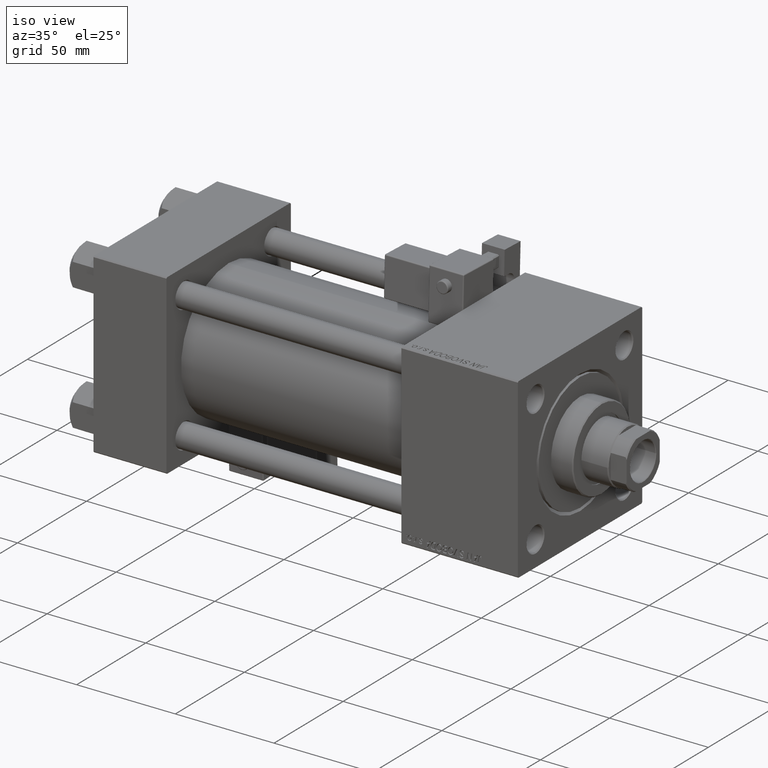
[diagram: clean part render]
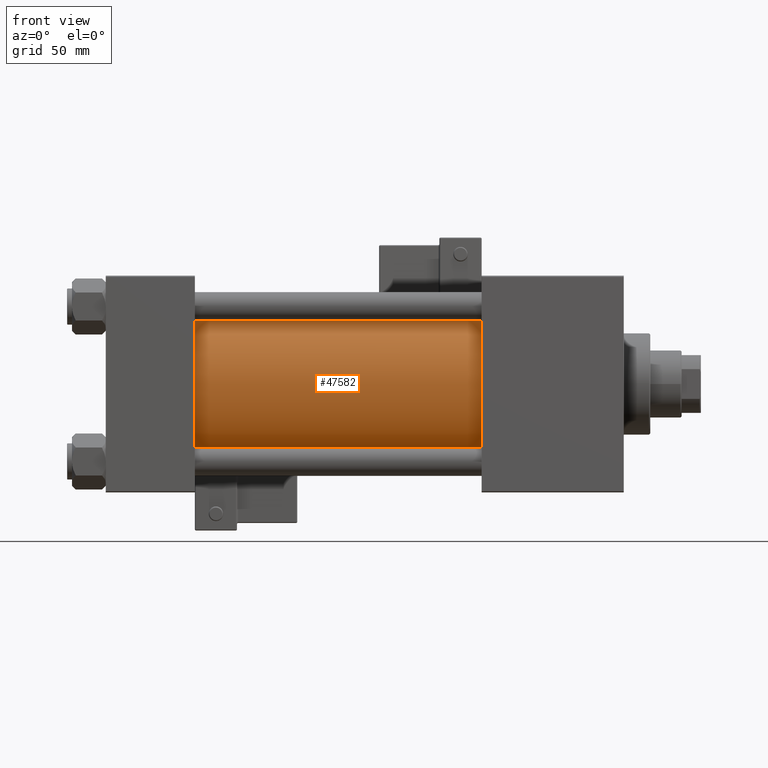
[diagram: tour spotlight — one face highlighted and labeled with its STEP entity id]
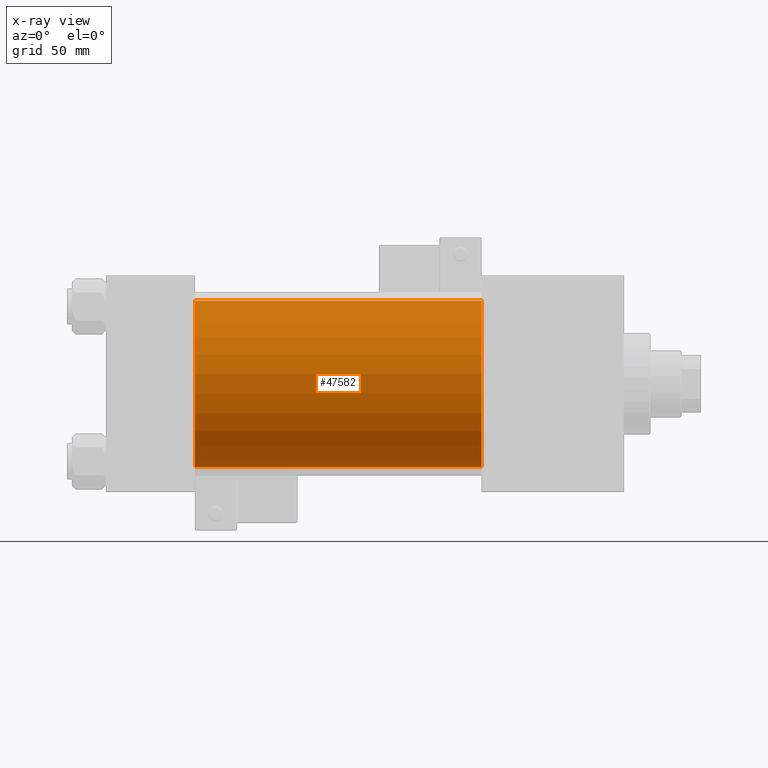
[diagram: x-ray of the same camera — body ghosted, this tour face saturated]
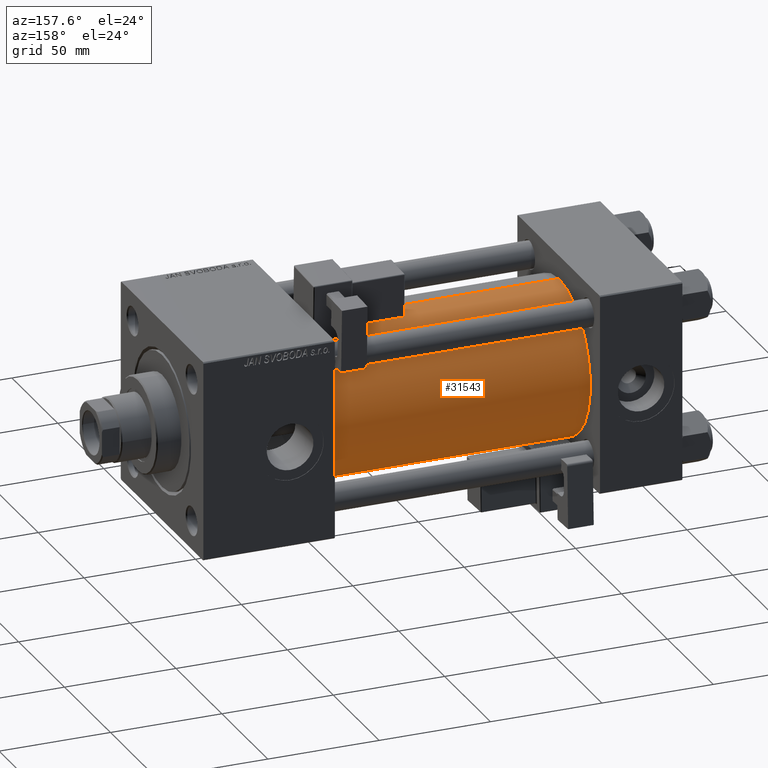
[diagram: tour spotlight — one face highlighted and labeled with its STEP entity id]
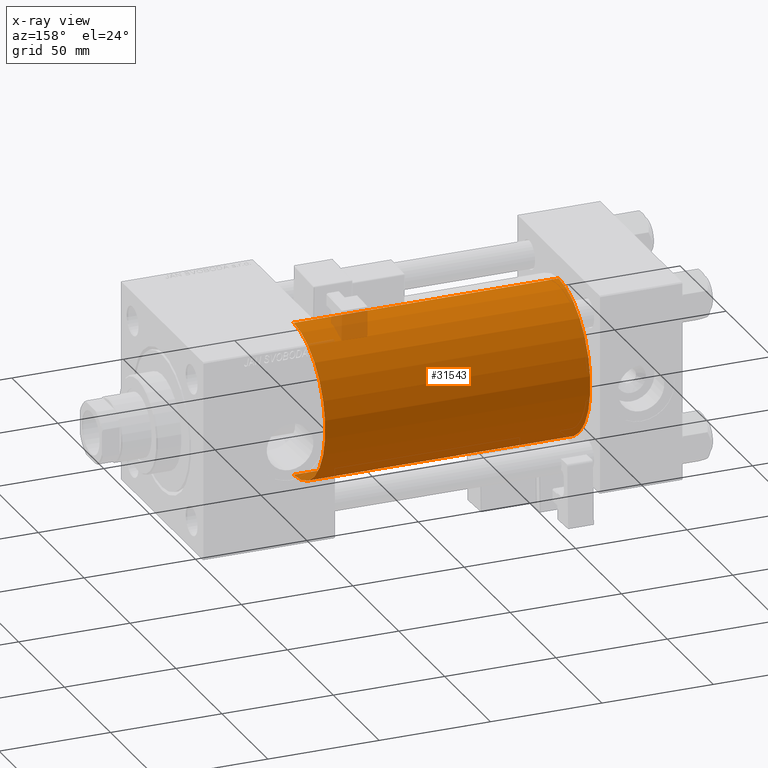
[diagram: x-ray of the same camera — body ghosted, this tour face saturated]
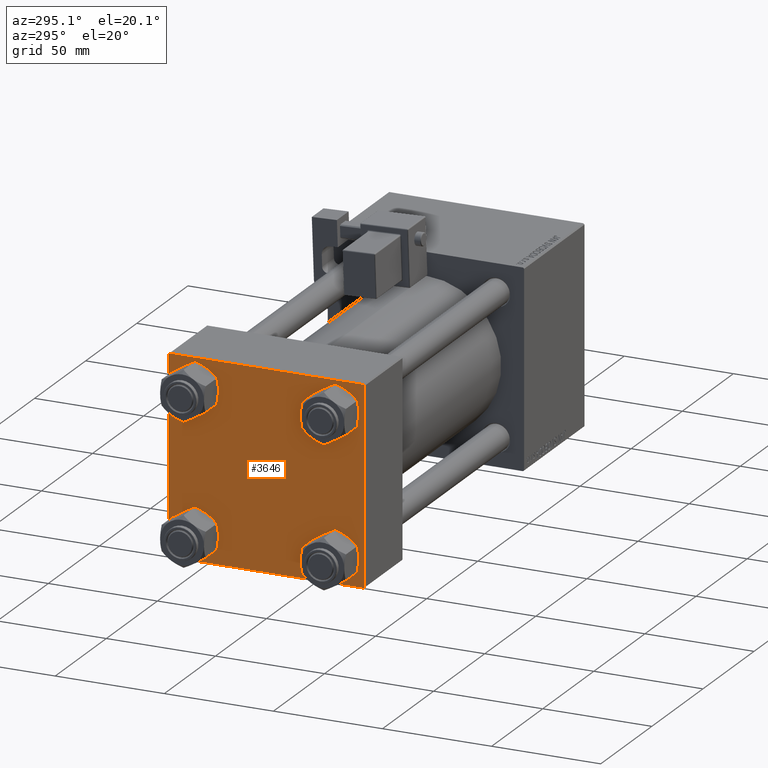
[diagram: tour spotlight — one face highlighted and labeled with its STEP entity id]
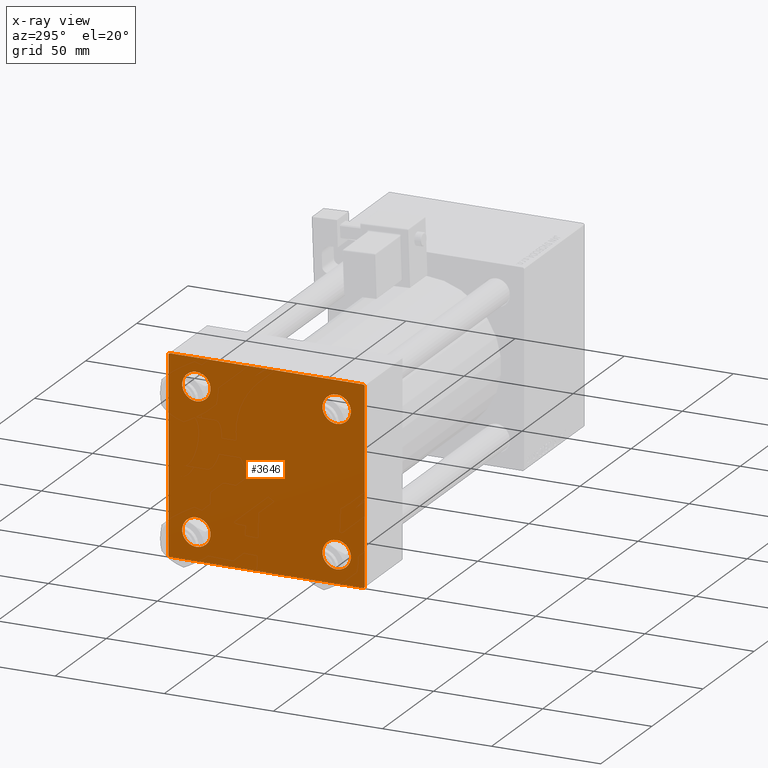
[diagram: x-ray of the same camera — body ghosted, this tour face saturated]
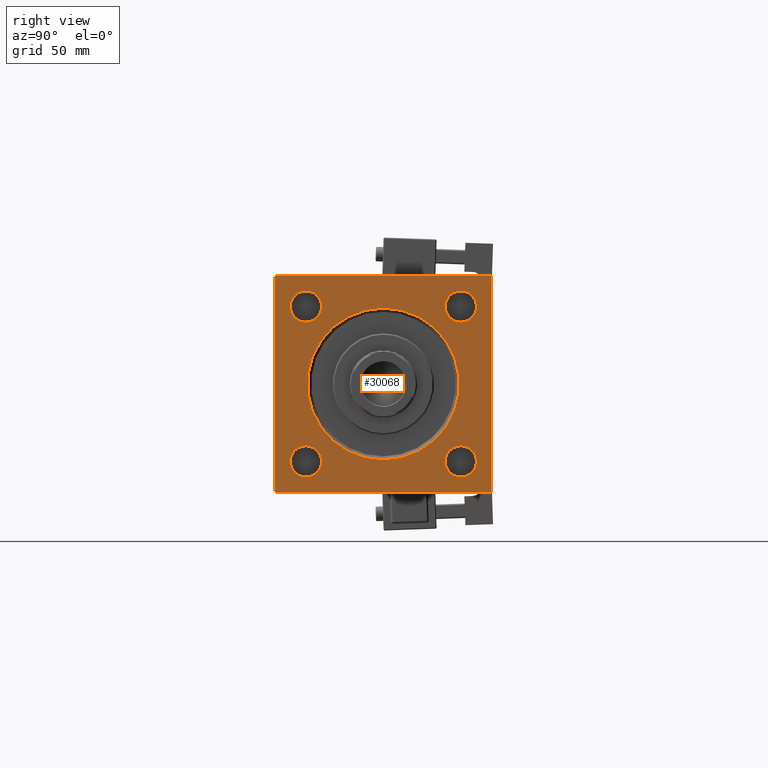
[diagram: tour spotlight — one face highlighted and labeled with its STEP entity id]
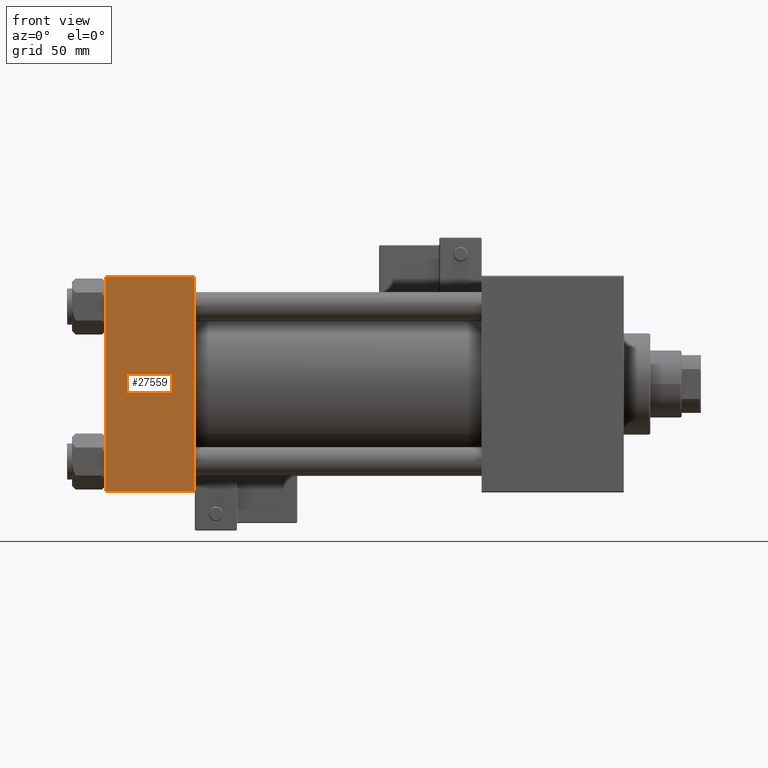
[diagram: tour spotlight — one face highlighted and labeled with its STEP entity id]
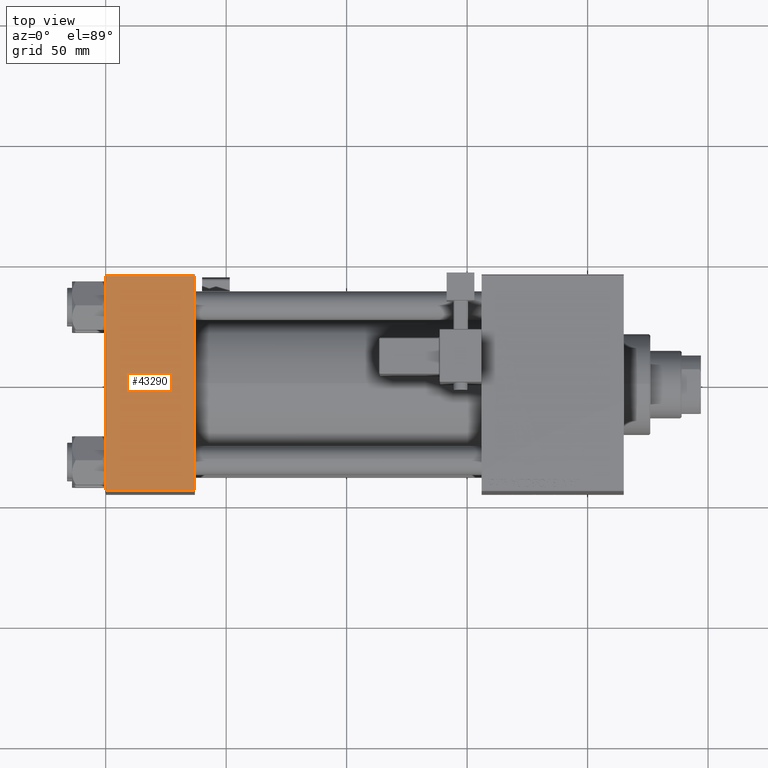
[diagram: tour spotlight — one face highlighted and labeled with its STEP entity id]
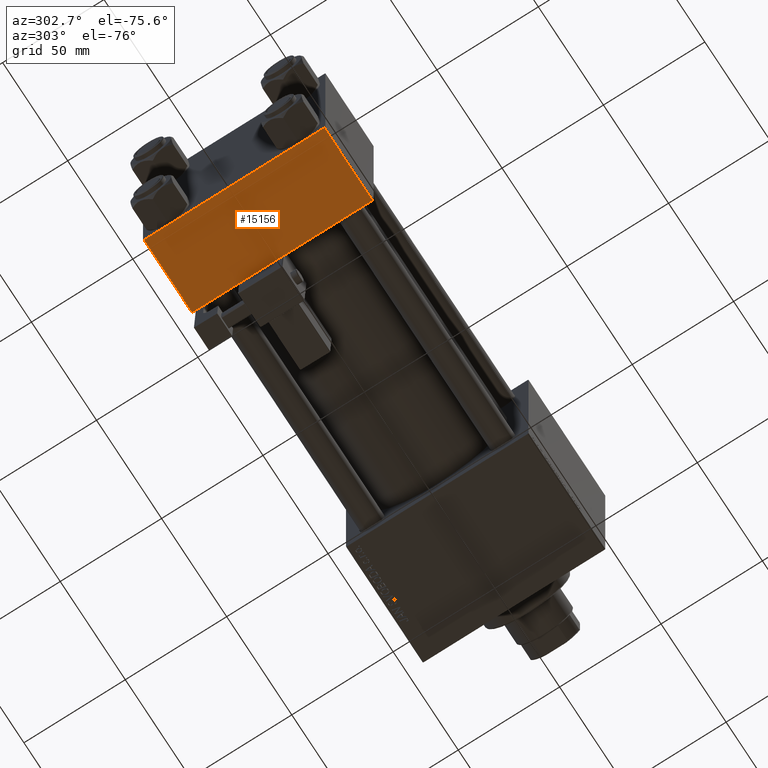
[diagram: tour spotlight — one face highlighted and labeled with its STEP entity id]
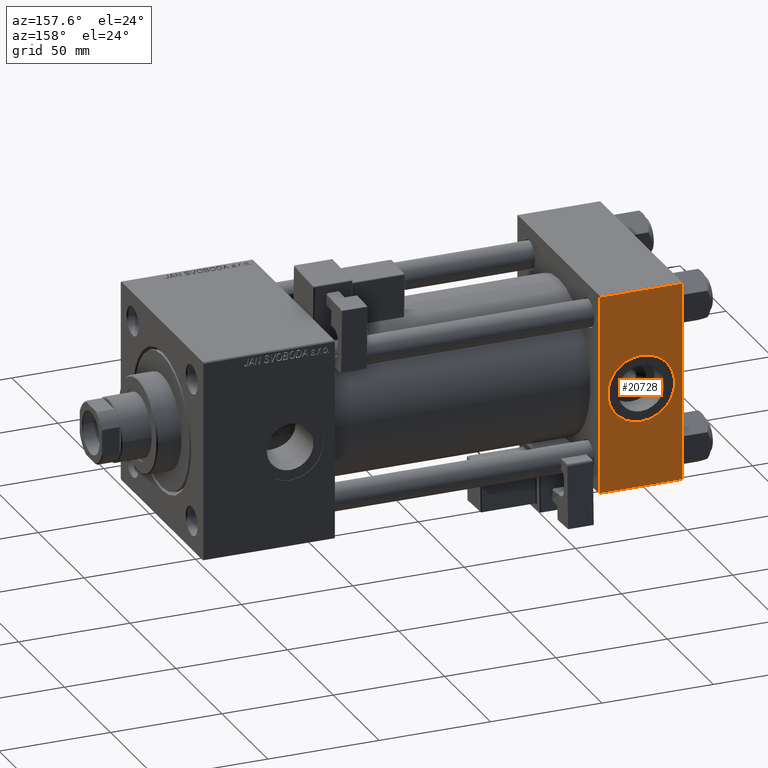
[diagram: tour spotlight — one face highlighted and labeled with its STEP entity id]
A machine part: a face-by-face anatomy tour. The part has 1303 B-rep faces; the first image is the clean iso view, then the 8 largest visible faces are spotlighted one at a time (largest first), each with its STEP entity span.

Face 1 — front view, entity #47582. An x-ray twin of the same camera follows (body ghosted, this face saturated) — the face is partly hidden behind the body. In plain terms, the highlighted cylindrical surface (partial cylindrical patch) has radius 34.5 mm, axis along (-1, -0, -0).
Definition (entity closure, byte-faithful):
#1209 = LINE ( 'NONE', #9971, #43547 ) ;
#1996 = AXIS2_PLACEMENT_3D ( 'NONE', #41012, #9218, #32814 ) ;
#2386 = DIRECTION ( 'NONE',  ( 0.000000000000000000, 0.000000000000000000, -1.000000000000000000 ) ) ;
#3608 = EDGE_LOOP ( 'NONE', ( #45586, #34998, #34489, #42099 ) ) ;
#4909 = AXIS2_PLACEMENT_3D ( 'NONE', #11379, #7385, #2386 ) ;
#6371 = EDGE_CURVE ( 'NONE', #19076, #20056, #1209, .T. ) ;
#7385 = DIRECTION ( 'NONE',  ( 1.000000000000000000, 0.000000000000000000, 0.000000000000000000 ) ) ;
#7760 = EDGE_CURVE ( 'NONE', #42928, #19899, #37087, .T. ) ;
#9218 = DIRECTION ( 'NONE',  ( 1.000000000000000000, -0.000000000000000000, 0.000000000000000000 ) ) ;
#9971 = CARTESIAN_POINT ( 'NONE',  ( 156.0000000000000000, -2.602085213965210642E-15, 34.50000000000000000 ) ) ;
#10837 = AXIS2_PLACEMENT_3D ( 'NONE', #22839, #47479, #11428 ) ;
#11379 = CARTESIAN_POINT ( 'NONE',  ( 156.0000000000000000, -2.602085213965210642E-15, 0.000000000000000000 ) ) ;
#11428 = DIRECTION ( 'NONE',  ( 0.000000000000000000, 0.000000000000000000, 1.000000000000000000 ) ) ;
#16699 = CARTESIAN_POINT ( 'NONE',  ( 156.0000000000000000, 1.622946243093158675E-15, -34.50000000000000000 ) ) ;
#17608 = CIRCLE ( 'NONE', #4909, 34.50000000000000000 ) ;
#18066 = CIRCLE ( 'NONE', #1996, 34.50000000000000000 ) ;
#19076 = VERTEX_POINT ( 'NONE', #47985 ) ;
#19635 = CYLINDRICAL_SURFACE ( 'NONE', #10837, 34.50000000000000000 ) ;
#19899 = VERTEX_POINT ( 'NONE', #37159 ) ;
#20056 = VERTEX_POINT ( 'NONE', #35002 ) ;
#21967 = EDGE_CURVE ( 'NONE', #20056, #19899, #18066, .T. ) ;
#22839 = CARTESIAN_POINT ( 'NONE',  ( 156.0000000000000000, -2.602085213965210642E-15, 0.000000000000000000 ) ) ;
#28899 = DIRECTION ( 'NONE',  ( -1.000000000000000000, -0.000000000000000000, -0.000000000000000000 ) ) ;
#32814 = DIRECTION ( 'NONE',  ( 0.000000000000000000, 0.000000000000000000, 1.000000000000000000 ) ) ;
#34489 = ORIENTED_EDGE ( 'NONE', *, *, #6371, .T. ) ;
#34998 = ORIENTED_EDGE ( 'NONE', *, *, #35562, .F. ) ;
#35002 = CARTESIAN_POINT ( 'NONE',  ( 37.00000000000000711, -2.602085213965210642E-15, 34.50000000000000000 ) ) ;
#35562 = EDGE_CURVE ( 'NONE', #19076, #42928, #17608, .T. ) ;
#37087 = LINE ( 'NONE', #16699, #40091 ) ;
#37159 = CARTESIAN_POINT ( 'NONE',  ( 37.00000000000000711, 1.622946243093158675E-15, -34.50000000000000000 ) ) ;
#38300 = DIRECTION ( 'NONE',  ( -1.000000000000000000, -0.000000000000000000, -0.000000000000000000 ) ) ;
#40091 = VECTOR ( 'NONE', #28899, 1000.000000000000000 ) ;
#41012 = CARTESIAN_POINT ( 'NONE',  ( 37.00000000000000711, -2.602085213965210642E-15, 0.000000000000000000 ) ) ;
#42099 = ORIENTED_EDGE ( 'NONE', *, *, #21967, .T. ) ;
#42723 = CARTESIAN_POINT ( 'NONE',  ( 156.0000000000000000, 1.622946243093158675E-15, -34.50000000000000000 ) ) ;
#42928 = VERTEX_POINT ( 'NONE', #42723 ) ;
#43547 = VECTOR ( 'NONE', #38300, 1000.000000000000000 ) ;
#45586 = ORIENTED_EDGE ( 'NONE', *, *, #7760, .F. ) ;
#47479 = DIRECTION ( 'NONE',  ( -1.000000000000000000, -0.000000000000000000, -0.000000000000000000 ) ) ;
#47582 = ADVANCED_FACE ( 'NONE', ( #47741 ), #19635, .T. ) ;
#47741 = FACE_OUTER_BOUND ( 'NONE', #3608, .T. ) ;
#47985 = CARTESIAN_POINT ( 'NONE',  ( 156.0000000000000000, -2.602085213965210642E-15, 34.50000000000000000 ) ) ;

Face 2 — auxiliary view, entity #31543. An x-ray twin of the same camera follows (body ghosted, this face saturated) — the face is partly hidden behind the body. In plain terms, the highlighted cylindrical surface (partial cylindrical patch) has radius 34.5 mm, axis along (-1, -0, -0).
Definition (entity closure, byte-faithful):
#1209 = LINE ( 'NONE', #9971, #43547 ) ;
#2151 = CIRCLE ( 'NONE', #5517, 34.50000000000000000 ) ;
#4212 = EDGE_LOOP ( 'NONE', ( #22278, #8773, #36427, #51671 ) ) ;
#5382 = FACE_OUTER_BOUND ( 'NONE', #4212, .T. ) ;
#5517 = AXIS2_PLACEMENT_3D ( 'NONE', #38617, #17990, #22216 ) ;
#6371 = EDGE_CURVE ( 'NONE', #19076, #20056, #1209, .T. ) ;
#7760 = EDGE_CURVE ( 'NONE', #42928, #19899, #37087, .T. ) ;
#8773 = ORIENTED_EDGE ( 'NONE', *, *, #7760, .T. ) ;
#9633 = CARTESIAN_POINT ( 'NONE',  ( 156.0000000000000000, -2.602085213965210642E-15, 0.000000000000000000 ) ) ;
#9971 = CARTESIAN_POINT ( 'NONE',  ( 156.0000000000000000, -2.602085213965210642E-15, 34.50000000000000000 ) ) ;
#15032 = DIRECTION ( 'NONE',  ( 0.000000000000000000, 0.000000000000000000, 1.000000000000000000 ) ) ;
#16699 = CARTESIAN_POINT ( 'NONE',  ( 156.0000000000000000, 1.622946243093158675E-15, -34.50000000000000000 ) ) ;
#16822 = AXIS2_PLACEMENT_3D ( 'NONE', #26971, #46837, #15032 ) ;
#17990 = DIRECTION ( 'NONE',  ( 1.000000000000000000, 0.000000000000000000, 0.000000000000000000 ) ) ;
#19076 = VERTEX_POINT ( 'NONE', #47985 ) ;
#19899 = VERTEX_POINT ( 'NONE', #37159 ) ;
#20056 = VERTEX_POINT ( 'NONE', #35002 ) ;
#20577 = CYLINDRICAL_SURFACE ( 'NONE', #42822, 34.50000000000000000 ) ;
#22216 = DIRECTION ( 'NONE',  ( 0.000000000000000000, 0.000000000000000000, -1.000000000000000000 ) ) ;
#22278 = ORIENTED_EDGE ( 'NONE', *, *, #26284, .F. ) ;
#23577 = CIRCLE ( 'NONE', #16822, 34.50000000000000000 ) ;
#25803 = DIRECTION ( 'NONE',  ( 0.000000000000000000, 0.000000000000000000, 1.000000000000000000 ) ) ;
#26284 = EDGE_CURVE ( 'NONE', #42928, #19076, #2151, .T. ) ;
#26971 = CARTESIAN_POINT ( 'NONE',  ( 37.00000000000000711, -2.602085213965210642E-15, 0.000000000000000000 ) ) ;
#28899 = DIRECTION ( 'NONE',  ( -1.000000000000000000, -0.000000000000000000, -0.000000000000000000 ) ) ;
#31543 = ADVANCED_FACE ( 'NONE', ( #5382 ), #20577, .T. ) ;
#33493 = DIRECTION ( 'NONE',  ( -1.000000000000000000, -0.000000000000000000, -0.000000000000000000 ) ) ;
#35002 = CARTESIAN_POINT ( 'NONE',  ( 37.00000000000000711, -2.602085213965210642E-15, 34.50000000000000000 ) ) ;
#36427 = ORIENTED_EDGE ( 'NONE', *, *, #48915, .T. ) ;
#37087 = LINE ( 'NONE', #16699, #40091 ) ;
#37159 = CARTESIAN_POINT ( 'NONE',  ( 37.00000000000000711, 1.622946243093158675E-15, -34.50000000000000000 ) ) ;
#38300 = DIRECTION ( 'NONE',  ( -1.000000000000000000, -0.000000000000000000, -0.000000000000000000 ) ) ;
#38617 = CARTESIAN_POINT ( 'NONE',  ( 156.0000000000000000, -2.602085213965210642E-15, 0.000000000000000000 ) ) ;
#40091 = VECTOR ( 'NONE', #28899, 1000.000000000000000 ) ;
#42723 = CARTESIAN_POINT ( 'NONE',  ( 156.0000000000000000, 1.622946243093158675E-15, -34.50000000000000000 ) ) ;
#42822 = AXIS2_PLACEMENT_3D ( 'NONE', #9633, #33493, #25803 ) ;
#42928 = VERTEX_POINT ( 'NONE', #42723 ) ;
#43547 = VECTOR ( 'NONE', #38300, 1000.000000000000000 ) ;
#46837 = DIRECTION ( 'NONE',  ( 1.000000000000000000, -0.000000000000000000, 0.000000000000000000 ) ) ;
#47985 = CARTESIAN_POINT ( 'NONE',  ( 156.0000000000000000, -2.602085213965210642E-15, 34.50000000000000000 ) ) ;
#48915 = EDGE_CURVE ( 'NONE', #19899, #20056, #23577, .T. ) ;
#51671 = ORIENTED_EDGE ( 'NONE', *, *, #6371, .F. ) ;

Face 3 — auxiliary view, entity #3646. An x-ray twin of the same camera follows (body ghosted, this face saturated) — the face is partly hidden behind the body. In plain terms, the highlighted planar face has unit normal (-1, 0, 0).
Definition (entity closure, byte-faithful):
#598 = EDGE_CURVE ( 'NONE', #38170, #44563, #23143, .T. ) ;
#1034 = VERTEX_POINT ( 'NONE', #48002 ) ;
#1082 = DIRECTION ( 'NONE',  ( 1.000000000000000000, -0.000000000000000000, 0.000000000000000000 ) ) ;
#2045 = CIRCLE ( 'NONE', #4583, 6.499999999999977796 ) ;
#2404 = EDGE_CURVE ( 'NONE', #22431, #23978, #40863, .T. ) ;
#2760 = CARTESIAN_POINT ( 'NONE',  ( 0.000000000000000000, -44.49999999999995737, -45.00000000000000000 ) ) ;
#2866 = LINE ( 'NONE', #47417, #31143 ) ;
#3080 = ORIENTED_EDGE ( 'NONE', *, *, #47377, .T. ) ;
#3646 = ADVANCED_FACE ( 'NONE', ( #20813, #45187, #12075, #44402, #4640 ), #45453, .T. ) ;
#3730 = ORIENTED_EDGE ( 'NONE', *, *, #28263, .T. ) ;
#4032 = DIRECTION ( 'NONE',  ( 0.000000000000000000, 0.000000000000000000, 1.000000000000000000 ) ) ;
#4121 = AXIS2_PLACEMENT_3D ( 'NONE', #25482, #1082, #25219 ) ;
#4583 = AXIS2_PLACEMENT_3D ( 'NONE', #29219, #37415, #37156 ) ;
#4640 = FACE_OUTER_BOUND ( 'NONE', #25671, .T. ) ;
#5545 = EDGE_CURVE ( 'NONE', #44190, #43643, #20771, .T. ) ;
#6129 = CIRCLE ( 'NONE', #20547, 6.500000000000019540 ) ;
#6581 = AXIS2_PLACEMENT_3D ( 'NONE', #52355, #40679, #32219 ) ;
#6652 = DIRECTION ( 'NONE',  ( 0.000000000000000000, 0.7071067811865474617, -0.7071067811865474617 ) ) ;
#6773 = LINE ( 'NONE', #46560, #51633 ) ;
#8372 = EDGE_CURVE ( 'NONE', #42481, #41245, #2045, .T. ) ;
#8589 = VERTEX_POINT ( 'NONE', #48780 ) ;
#9581 = DIRECTION ( 'NONE',  ( 1.000000000000000000, -0.000000000000000000, 0.000000000000000000 ) ) ;
#10207 = CARTESIAN_POINT ( 'NONE',  ( 0.000000000000000000, 32.14999999999999147, 25.65000000000002700 ) ) ;
#10921 = ORIENTED_EDGE ( 'NONE', *, *, #49334, .T. ) ;
#12075 = FACE_BOUND ( 'NONE', #49624, .T. ) ;
#12522 = CARTESIAN_POINT ( 'NONE',  ( 0.000000000000000000, 44.74999999999998579, -44.74999999999998579 ) ) ;
#12559 = VERTEX_POINT ( 'NONE', #42391 ) ;
#12630 = ORIENTED_EDGE ( 'NONE', *, *, #29120, .T. ) ;
#13519 = AXIS2_PLACEMENT_3D ( 'NONE', #52079, #47589, #51306 ) ;
#15541 = CARTESIAN_POINT ( 'NONE',  ( 0.000000000000000000, 44.99999999999998579, -44.49999999999995737 ) ) ;
#15907 = CIRCLE ( 'NONE', #6581, 6.499999999999977796 ) ;
#16187 = CARTESIAN_POINT ( 'NONE',  ( 0.000000000000000000, 44.49999999999998579, -44.99999999999998579 ) ) ;
#16798 = CARTESIAN_POINT ( 'NONE',  ( -0.000000000000000000, -44.75000000000029843, 44.74999999999967315 ) ) ;
#17250 = DIRECTION ( 'NONE',  ( 0.000000000000000000, 7.709882115452476934E-17, -1.000000000000000000 ) ) ;
#19628 = CARTESIAN_POINT ( 'NONE',  ( 0.000000000000000000, 44.74999999999999289, 44.74999999999999289 ) ) ;
#19770 = EDGE_CURVE ( 'NONE', #35492, #8589, #6129, .T. ) ;
#19951 = DIRECTION ( 'NONE',  ( 1.000000000000000000, -0.000000000000000000, 0.000000000000000000 ) ) ;
#20138 = VERTEX_POINT ( 'NONE', #16187 ) ;
#20547 = AXIS2_PLACEMENT_3D ( 'NONE', #40605, #19951, #4032 ) ;
#20771 = LINE ( 'NONE', #36930, #51167 ) ;
#20813 = FACE_BOUND ( 'NONE', #30860, .T. ) ;
#21410 = CARTESIAN_POINT ( 'NONE',  ( 0.000000000000000000, -45.00000000000000000, -44.49999999999995737 ) ) ;
#21871 = CARTESIAN_POINT ( 'NONE',  ( 0.000000000000000000, -32.14999999999997726, -25.65000000000003411 ) ) ;
#22431 = VERTEX_POINT ( 'NONE', #10207 ) ;
#22451 = AXIS2_PLACEMENT_3D ( 'NONE', #23695, #39842, #35873 ) ;
#22594 = CARTESIAN_POINT ( 'NONE',  ( 0.000000000000000000, 44.49999999999998579, 45.00000000000001421 ) ) ;
#22757 = DIRECTION ( 'NONE',  ( 0.000000000000000000, 0.000000000000000000, 1.000000000000000000 ) ) ;
#22777 = DIRECTION ( 'NONE',  ( 0.000000000000000000, -1.000000000000000000, -1.541976423090495633E-16 ) ) ;
#23010 = DIRECTION ( 'NONE',  ( 1.000000000000000000, -0.000000000000000000, 0.000000000000000000 ) ) ;
#23143 = LINE ( 'NONE', #30850, #33233 ) ;
#23289 = EDGE_CURVE ( 'NONE', #37279, #1034, #36394, .T. ) ;
#23379 = CIRCLE ( 'NONE', #28464, 6.500000000000019540 ) ;
#23695 = CARTESIAN_POINT ( 'NONE',  ( 0.000000000000000000, 32.14999999999999147, 32.15000000000000568 ) ) ;
#23856 = ORIENTED_EDGE ( 'NONE', *, *, #46748, .T. ) ;
#23978 = VERTEX_POINT ( 'NONE', #30878 ) ;
#23998 = DIRECTION ( 'NONE',  ( -1.000000000000000000, 0.000000000000000000, -0.000000000000000000 ) ) ;
#24338 = VECTOR ( 'NONE', #6652, 1000.000000000000114 ) ;
#24539 = VECTOR ( 'NONE', #17250, 1000.000000000000000 ) ;
#25219 = DIRECTION ( 'NONE',  ( 0.000000000000000000, 0.000000000000000000, 1.000000000000000000 ) ) ;
#25482 = CARTESIAN_POINT ( 'NONE',  ( 0.000000000000000000, -32.14999999999997726, -32.15000000000001279 ) ) ;
#25499 = LINE ( 'NONE', #12522, #30210 ) ;
#25644 = EDGE_CURVE ( 'NONE', #23978, #22431, #25845, .T. ) ;
#25671 = EDGE_LOOP ( 'NONE', ( #50052, #12630, #43459, #42807, #45557, #37968, #46974, #23856 ) ) ;
#25747 = AXIS2_PLACEMENT_3D ( 'NONE', #36970, #23998, #40151 ) ;
#25751 = DIRECTION ( 'NONE',  ( 0.000000000000000000, 0.000000000000000000, 1.000000000000000000 ) ) ;
#25845 = CIRCLE ( 'NONE', #22451, 6.499999999999977796 ) ;
#26136 = ORIENTED_EDGE ( 'NONE', *, *, #25644, .T. ) ;
#27047 = ORIENTED_EDGE ( 'NONE', *, *, #8372, .T. ) ;
#28263 = EDGE_CURVE ( 'NONE', #8589, #35492, #23379, .T. ) ;
#28464 = AXIS2_PLACEMENT_3D ( 'NONE', #29731, #9581, #25751 ) ;
#29120 = EDGE_CURVE ( 'NONE', #43643, #20138, #25499, .T. ) ;
#29187 = CARTESIAN_POINT ( 'NONE',  ( 0.000000000000000000, 44.99999999999998579, 44.50000000000001421 ) ) ;
#29219 = CARTESIAN_POINT ( 'NONE',  ( 0.000000000000000000, -32.14999999999997726, -32.15000000000001279 ) ) ;
#29731 = CARTESIAN_POINT ( 'NONE',  ( 0.000000000000000000, -32.14999999999997726, 32.15000000000001279 ) ) ;
#30210 = VECTOR ( 'NONE', #41134, 1000.000000000000114 ) ;
#30285 = CARTESIAN_POINT ( 'NONE',  ( 0.000000000000000000, -32.14999999999997726, -38.64999999999999147 ) ) ;
#30617 = CARTESIAN_POINT ( 'NONE',  ( 0.000000000000000000, -45.00000000000000711, 44.49999999999997158 ) ) ;
#30846 = VECTOR ( 'NONE', #41159, 1000.000000000000114 ) ;
#30850 = CARTESIAN_POINT ( 'NONE',  ( 0.000000000000000000, -44.74999999999998579, -44.74999999999998579 ) ) ;
#30860 = EDGE_LOOP ( 'NONE', ( #38271, #3730 ) ) ;
#30878 = CARTESIAN_POINT ( 'NONE',  ( 0.000000000000000000, 32.14999999999999147, 38.64999999999999147 ) ) ;
#31143 = VECTOR ( 'NONE', #22777, 1000.000000000000000 ) ;
#32219 = DIRECTION ( 'NONE',  ( 0.000000000000000000, 0.000000000000000000, 1.000000000000000000 ) ) ;
#32969 = DIRECTION ( 'NONE',  ( 0.000000000000000000, 0.000000000000000000, -1.000000000000000000 ) ) ;
#33114 = EDGE_LOOP ( 'NONE', ( #27047, #10921 ) ) ;
#33233 = VECTOR ( 'NONE', #47007, 1000.000000000000114 ) ;
#34630 = DIRECTION ( 'NONE',  ( 0.000000000000000000, -1.000000000000000000, -1.541976423090495387E-16 ) ) ;
#35492 = VERTEX_POINT ( 'NONE', #43446 ) ;
#35873 = DIRECTION ( 'NONE',  ( 0.000000000000000000, 0.000000000000000000, 1.000000000000000000 ) ) ;
#36394 = LINE ( 'NONE', #16798, #30846 ) ;
#36844 = LINE ( 'NONE', #48797, #24539 ) ;
#36930 = CARTESIAN_POINT ( 'NONE',  ( 0.000000000000000000, 44.99999999999998579, 45.00000000000001421 ) ) ;
#36970 = CARTESIAN_POINT ( 'NONE',  ( 0.000000000000000000, 0.000000000000000000, 0.000000000000000000 ) ) ;
#37156 = DIRECTION ( 'NONE',  ( 0.000000000000000000, 0.000000000000000000, 1.000000000000000000 ) ) ;
#37279 = VERTEX_POINT ( 'NONE', #30617 ) ;
#37415 = DIRECTION ( 'NONE',  ( 1.000000000000000000, -0.000000000000000000, 0.000000000000000000 ) ) ;
#37968 = ORIENTED_EDGE ( 'NONE', *, *, #23289, .T. ) ;
#38170 = VERTEX_POINT ( 'NONE', #2760 ) ;
#38271 = ORIENTED_EDGE ( 'NONE', *, *, #19770, .T. ) ;
#39842 = DIRECTION ( 'NONE',  ( 1.000000000000000000, -0.000000000000000000, 0.000000000000000000 ) ) ;
#40151 = DIRECTION ( 'NONE',  ( -0.000000000000000000, 0.000000000000000000, 1.000000000000000000 ) ) ;
#40597 = EDGE_CURVE ( 'NONE', #48690, #1034, #6773, .T. ) ;
#40605 = CARTESIAN_POINT ( 'NONE',  ( 0.000000000000000000, -32.14999999999997726, 32.15000000000001279 ) ) ;
#40679 = DIRECTION ( 'NONE',  ( 1.000000000000000000, -0.000000000000000000, 0.000000000000000000 ) ) ;
#40863 = CIRCLE ( 'NONE', #47647, 6.499999999999977796 ) ;
#41039 = VERTEX_POINT ( 'NONE', #50220 ) ;
#41134 = DIRECTION ( 'NONE',  ( -0.000000000000000000, -0.7071067811865474617, -0.7071067811865474617 ) ) ;
#41159 = DIRECTION ( 'NONE',  ( -0.000000000000000000, 0.7071067811865425767, 0.7071067811865524577 ) ) ;
#41245 = VERTEX_POINT ( 'NONE', #30285 ) ;
#42391 = CARTESIAN_POINT ( 'NONE',  ( 0.000000000000000000, 32.14999999999999147, -25.65000000000002700 ) ) ;
#42481 = VERTEX_POINT ( 'NONE', #21871 ) ;
#42807 = ORIENTED_EDGE ( 'NONE', *, *, #598, .T. ) ;
#43146 = EDGE_CURVE ( 'NONE', #37279, #44563, #36844, .T. ) ;
#43446 = CARTESIAN_POINT ( 'NONE',  ( 0.000000000000000000, -32.14999999999997726, 38.65000000000003411 ) ) ;
#43459 = ORIENTED_EDGE ( 'NONE', *, *, #47826, .T. ) ;
#43643 = VERTEX_POINT ( 'NONE', #15541 ) ;
#44190 = VERTEX_POINT ( 'NONE', #29187 ) ;
#44402 = FACE_BOUND ( 'NONE', #51927, .T. ) ;
#44563 = VERTEX_POINT ( 'NONE', #21410 ) ;
#44842 = CIRCLE ( 'NONE', #13519, 6.499999999999977796 ) ;
#45187 = FACE_BOUND ( 'NONE', #33114, .T. ) ;
#45453 = PLANE ( 'NONE',  #25747 ) ;
#45557 = ORIENTED_EDGE ( 'NONE', *, *, #43146, .F. ) ;
#46560 = CARTESIAN_POINT ( 'NONE',  ( 0.000000000000000000, 44.99999999999998579, 45.00000000000001421 ) ) ;
#46660 = ORIENTED_EDGE ( 'NONE', *, *, #2404, .T. ) ;
#46748 = EDGE_CURVE ( 'NONE', #48690, #44190, #51443, .T. ) ;
#46974 = ORIENTED_EDGE ( 'NONE', *, *, #40597, .F. ) ;
#47007 = DIRECTION ( 'NONE',  ( 0.000000000000000000, -0.7071067811865474617, 0.7071067811865474617 ) ) ;
#47301 = CIRCLE ( 'NONE', #4121, 6.499999999999977796 ) ;
#47377 = EDGE_CURVE ( 'NONE', #41039, #12559, #15907, .T. ) ;
#47417 = CARTESIAN_POINT ( 'NONE',  ( 0.000000000000000000, 44.99999999999998579, -44.99999999999998579 ) ) ;
#47589 = DIRECTION ( 'NONE',  ( 1.000000000000000000, -0.000000000000000000, 0.000000000000000000 ) ) ;
#47647 = AXIS2_PLACEMENT_3D ( 'NONE', #47653, #23010, #22757 ) ;
#47653 = CARTESIAN_POINT ( 'NONE',  ( 0.000000000000000000, 32.14999999999999147, 32.15000000000000568 ) ) ;
#47826 = EDGE_CURVE ( 'NONE', #20138, #38170, #2866, .T. ) ;
#48002 = CARTESIAN_POINT ( 'NONE',  ( 0.000000000000000000, -44.49999999999995737, 45.00000000000000000 ) ) ;
#48607 = ORIENTED_EDGE ( 'NONE', *, *, #51903, .T. ) ;
#48690 = VERTEX_POINT ( 'NONE', #22594 ) ;
#48780 = CARTESIAN_POINT ( 'NONE',  ( 0.000000000000000000, -32.14999999999997726, 25.64999999999999147 ) ) ;
#48797 = CARTESIAN_POINT ( 'NONE',  ( 0.000000000000000000, -45.00000000000000711, 45.00000000000000000 ) ) ;
#49334 = EDGE_CURVE ( 'NONE', #41245, #42481, #47301, .T. ) ;
#49624 = EDGE_LOOP ( 'NONE', ( #48607, #3080 ) ) ;
#50052 = ORIENTED_EDGE ( 'NONE', *, *, #5545, .T. ) ;
#50220 = CARTESIAN_POINT ( 'NONE',  ( 0.000000000000000000, 32.14999999999999147, -38.64999999999998437 ) ) ;
#51167 = VECTOR ( 'NONE', #32969, 1000.000000000000000 ) ;
#51306 = DIRECTION ( 'NONE',  ( 0.000000000000000000, 0.000000000000000000, 1.000000000000000000 ) ) ;
#51443 = LINE ( 'NONE', #19628, #24338 ) ;
#51633 = VECTOR ( 'NONE', #34630, 1000.000000000000000 ) ;
#51903 = EDGE_CURVE ( 'NONE', #12559, #41039, #44842, .T. ) ;
#51927 = EDGE_LOOP ( 'NONE', ( #26136, #46660 ) ) ;
#52079 = CARTESIAN_POINT ( 'NONE',  ( 0.000000000000000000, 32.14999999999999147, -32.15000000000000568 ) ) ;
#52355 = CARTESIAN_POINT ( 'NONE',  ( 0.000000000000000000, 32.14999999999999147, -32.15000000000000568 ) ) ;

Face 4 — right view, entity #30068. In plain terms, the highlighted planar face has unit normal (-1, 0, 0).
Definition (entity closure, byte-faithful):
#74 = CARTESIAN_POINT ( 'NONE',  ( 215.0000000000000000, -32.14999999999999147, 32.14999999999999147 ) ) ;
#139 = CIRCLE ( 'NONE', #32315, 6.499999999999977796 ) ;
#439 = CARTESIAN_POINT ( 'NONE',  ( 215.0000000000000000, -45.00000000000000000, 44.50000000000001421 ) ) ;
#511 = CARTESIAN_POINT ( 'NONE',  ( 215.0000000000000000, 44.50000000000001421, 45.00000000000000000 ) ) ;
#573 = DIRECTION ( 'NONE',  ( 0.000000000000000000, 0.000000000000000000, 1.000000000000000000 ) ) ;
#948 = VERTEX_POINT ( 'NONE', #3184 ) ;
#1199 = EDGE_CURVE ( 'NONE', #42649, #30376, #31525, .T. ) ;
#2028 = DIRECTION ( 'NONE',  ( 0.000000000000000000, 0.000000000000000000, 1.000000000000000000 ) ) ;
#2183 = DIRECTION ( 'NONE',  ( -0.000000000000000000, 0.7071067811865474617, 0.7071067811865474617 ) ) ;
#2186 = LINE ( 'NONE', #30043, #15630 ) ;
#2214 = VERTEX_POINT ( 'NONE', #12981 ) ;
#2543 = CARTESIAN_POINT ( 'NONE',  ( 215.0000000000000000, -32.14999999999999147, 32.14999999999999147 ) ) ;
#3042 = DIRECTION ( 'NONE',  ( 0.000000000000000000, 0.000000000000000000, 1.000000000000000000 ) ) ;
#3070 = FACE_BOUND ( 'NONE', #12643, .T. ) ;
#3184 = CARTESIAN_POINT ( 'NONE',  ( 215.0000000000000000, 45.00000000000001421, -44.49999999999997158 ) ) ;
#3434 = CARTESIAN_POINT ( 'NONE',  ( 215.0000000000000000, 32.14999999999999147, -32.15000000000000568 ) ) ;
#4439 = ORIENTED_EDGE ( 'NONE', *, *, #41974, .T. ) ;
#4621 = CARTESIAN_POINT ( 'NONE',  ( 215.0000000000000000, 0.000000000000000000, -31.49999999999997158 ) ) ;
#4672 = ORIENTED_EDGE ( 'NONE', *, *, #39641, .T. ) ;
#5027 = LINE ( 'NONE', #511, #37113 ) ;
#5201 = ORIENTED_EDGE ( 'NONE', *, *, #17219, .T. ) ;
#7539 = AXIS2_PLACEMENT_3D ( 'NONE', #46058, #17983, #41826 ) ;
#7862 = ORIENTED_EDGE ( 'NONE', *, *, #19805, .T. ) ;
#8053 = CARTESIAN_POINT ( 'NONE',  ( 215.0000000000000000, -44.50000000000000000, 44.99999999999998579 ) ) ;
#8250 = ORIENTED_EDGE ( 'NONE', *, *, #1199, .T. ) ;
#8547 = DIRECTION ( 'NONE',  ( -1.000000000000000000, -0.000000000000000000, -0.000000000000000000 ) ) ;
#9051 = ORIENTED_EDGE ( 'NONE', *, *, #26850, .T. ) ;
#9329 = VERTEX_POINT ( 'NONE', #24457 ) ;
#9448 = VERTEX_POINT ( 'NONE', #37944 ) ;
#9551 = CARTESIAN_POINT ( 'NONE',  ( 215.0000000000000000, 0.000000000000000000, 0.000000000000000000 ) ) ;
#9819 = FACE_OUTER_BOUND ( 'NONE', #52193, .T. ) ;
#10520 = VERTEX_POINT ( 'NONE', #10755 ) ;
#10755 = CARTESIAN_POINT ( 'NONE',  ( 215.0000000000000000, -32.15000000000001279, -25.65000000000002700 ) ) ;
#10804 = EDGE_CURVE ( 'NONE', #20471, #2214, #21621, .T. ) ;
#11208 = AXIS2_PLACEMENT_3D ( 'NONE', #2543, #42326, #2028 ) ;
#11347 = EDGE_CURVE ( 'NONE', #2214, #20471, #14884, .T. ) ;
#11566 = EDGE_CURVE ( 'NONE', #9329, #51101, #25891, .T. ) ;
#12268 = DIRECTION ( 'NONE',  ( -1.000000000000000000, -0.000000000000000000, -0.000000000000000000 ) ) ;
#12643 = EDGE_LOOP ( 'NONE', ( #8250, #14121 ) ) ;
#12981 = CARTESIAN_POINT ( 'NONE',  ( 215.0000000000000000, 32.14999999999999147, -25.65000000000002700 ) ) ;
#13272 = VERTEX_POINT ( 'NONE', #32637 ) ;
#14121 = ORIENTED_EDGE ( 'NONE', *, *, #34019, .T. ) ;
#14287 = EDGE_CURVE ( 'NONE', #21432, #948, #15894, .T. ) ;
#14398 = DIRECTION ( 'NONE',  ( 0.000000000000000000, -1.000000000000000000, 0.000000000000000000 ) ) ;
#14419 = VECTOR ( 'NONE', #20343, 1000.000000000000114 ) ;
#14467 = VERTEX_POINT ( 'NONE', #46334 ) ;
#14884 = CIRCLE ( 'NONE', #41089, 6.499999999999977796 ) ;
#15557 = ORIENTED_EDGE ( 'NONE', *, *, #24389, .F. ) ;
#15630 = VECTOR ( 'NONE', #14398, 1000.000000000000000 ) ;
#15634 = LINE ( 'NONE', #31794, #34356 ) ;
#15894 = LINE ( 'NONE', #52457, #48859 ) ;
#16712 = DIRECTION ( 'NONE',  ( 0.000000000000000000, -0.7071067811865474617, 0.7071067811865474617 ) ) ;
#17219 = EDGE_CURVE ( 'NONE', #21432, #9448, #5027, .T. ) ;
#17649 = CARTESIAN_POINT ( 'NONE',  ( 215.0000000000000000, 44.50000000000001421, -45.00000000000000000 ) ) ;
#17667 = EDGE_CURVE ( 'NONE', #42751, #38193, #50281, .T. ) ;
#17770 = LINE ( 'NONE', #37364, #40050 ) ;
#17983 = DIRECTION ( 'NONE',  ( -1.000000000000000000, -0.000000000000000000, -0.000000000000000000 ) ) ;
#18039 = FACE_BOUND ( 'NONE', #22985, .T. ) ;
#18680 = CARTESIAN_POINT ( 'NONE',  ( 215.0000000000000000, -32.14999999999999147, 38.64999999999997016 ) ) ;
#18953 = ORIENTED_EDGE ( 'NONE', *, *, #17667, .T. ) ;
#19263 = FACE_BOUND ( 'NONE', #19742, .T. ) ;
#19606 = VERTEX_POINT ( 'NONE', #35059 ) ;
#19717 = CARTESIAN_POINT ( 'NONE',  ( 215.0000000000000000, 32.14999999999999147, 32.15000000000000568 ) ) ;
#19742 = EDGE_LOOP ( 'NONE', ( #45547, #44687 ) ) ;
#19805 = EDGE_CURVE ( 'NONE', #19606, #14467, #50188, .T. ) ;
#19984 = DIRECTION ( 'NONE',  ( -1.000000000000000000, -0.000000000000000000, -0.000000000000000000 ) ) ;
#20343 = DIRECTION ( 'NONE',  ( -0.000000000000000000, -0.7071067811865474617, -0.7071067811865474617 ) ) ;
#20471 = VERTEX_POINT ( 'NONE', #51638 ) ;
#21010 = DIRECTION ( 'NONE',  ( 0.000000000000000000, 0.000000000000000000, 1.000000000000000000 ) ) ;
#21139 = EDGE_CURVE ( 'NONE', #38193, #45439, #17770, .T. ) ;
#21432 = VERTEX_POINT ( 'NONE', #50813 ) ;
#21621 = CIRCLE ( 'NONE', #51236, 6.499999999999977796 ) ;
#21655 = AXIS2_PLACEMENT_3D ( 'NONE', #36435, #23199, #3042 ) ;
#22342 = LINE ( 'NONE', #39004, #33454 ) ;
#22985 = EDGE_LOOP ( 'NONE', ( #4439, #46143 ) ) ;
#23199 = DIRECTION ( 'NONE',  ( -1.000000000000000000, -0.000000000000000000, -0.000000000000000000 ) ) ;
#23438 = CARTESIAN_POINT ( 'NONE',  ( 215.0000000000000000, -44.99999999999999289, -44.49999999999997158 ) ) ;
#24389 = EDGE_CURVE ( 'NONE', #33937, #45439, #2186, .T. ) ;
#24457 = CARTESIAN_POINT ( 'NONE',  ( 215.0000000000000000, 3.857637417314158745E-15, 31.49999999999997158 ) ) ;
#25194 = CIRCLE ( 'NONE', #42147, 6.499999999999970690 ) ;
#25461 = DIRECTION ( 'NONE',  ( -0.000000000000000000, 0.000000000000000000, 1.000000000000000000 ) ) ;
#25664 = ORIENTED_EDGE ( 'NONE', *, *, #25721, .T. ) ;
#25721 = EDGE_CURVE ( 'NONE', #33937, #948, #22342, .T. ) ;
#25891 = CIRCLE ( 'NONE', #21655, 31.49999999999997158 ) ;
#26091 = ORIENTED_EDGE ( 'NONE', *, *, #14287, .F. ) ;
#26850 = EDGE_CURVE ( 'NONE', #9448, #29932, #15634, .T. ) ;
#27322 = DIRECTION ( 'NONE',  ( 0.000000000000000000, 0.000000000000000000, 1.000000000000000000 ) ) ;
#27977 = ORIENTED_EDGE ( 'NONE', *, *, #21139, .T. ) ;
#28576 = CIRCLE ( 'NONE', #42112, 6.499999999999977796 ) ;
#29700 = PLANE ( 'NONE',  #46310 ) ;
#29932 = VERTEX_POINT ( 'NONE', #8053 ) ;
#30043 = CARTESIAN_POINT ( 'NONE',  ( 215.0000000000000000, 45.00000000000001421, -45.00000000000000000 ) ) ;
#30061 = DIRECTION ( 'NONE',  ( 0.000000000000000000, 0.000000000000000000, 1.000000000000000000 ) ) ;
#30068 = ADVANCED_FACE ( 'NONE', ( #46118, #3070, #50371, #19263, #18039, #9819 ), #29700, .F. ) ;
#30350 = CARTESIAN_POINT ( 'NONE',  ( 215.0000000000000000, -32.14999999999999147, 25.65000000000001279 ) ) ;
#30376 = VERTEX_POINT ( 'NONE', #18680 ) ;
#31525 = CIRCLE ( 'NONE', #11208, 6.499999999999977796 ) ;
#31794 = CARTESIAN_POINT ( 'NONE',  ( 215.0000000000000000, 45.00000000000001421, 45.00000000000000000 ) ) ;
#31911 = DIRECTION ( 'NONE',  ( 0.000000000000000000, 0.000000000000000000, 1.000000000000000000 ) ) ;
#32061 = DIRECTION ( 'NONE',  ( 0.000000000000000000, -1.000000000000000000, -1.541976423090495140E-16 ) ) ;
#32315 = AXIS2_PLACEMENT_3D ( 'NONE', #49591, #45600, #32897 ) ;
#32637 = CARTESIAN_POINT ( 'NONE',  ( 215.0000000000000000, -32.15000000000001279, -38.64999999999999147 ) ) ;
#32897 = DIRECTION ( 'NONE',  ( 0.000000000000000000, 0.000000000000000000, 1.000000000000000000 ) ) ;
#32952 = DIRECTION ( 'NONE',  ( 0.000000000000000000, 0.000000000000000000, 1.000000000000000000 ) ) ;
#33058 = LINE ( 'NONE', #439, #14419 ) ;
#33454 = VECTOR ( 'NONE', #2183, 1000.000000000000114 ) ;
#33716 = VECTOR ( 'NONE', #42321, 1000.000000000000000 ) ;
#33937 = VERTEX_POINT ( 'NONE', #17649 ) ;
#34019 = EDGE_CURVE ( 'NONE', #30376, #42649, #28576, .T. ) ;
#34030 = CARTESIAN_POINT ( 'NONE',  ( 215.0000000000000000, 32.14999999999999147, -32.15000000000000568 ) ) ;
#34326 = CARTESIAN_POINT ( 'NONE',  ( 215.0000000000000000, -44.49999999999995737, -45.00000000000000000 ) ) ;
#34356 = VECTOR ( 'NONE', #32061, 1000.000000000000000 ) ;
#34649 = CIRCLE ( 'NONE', #7539, 6.499999999999977796 ) ;
#34885 = EDGE_CURVE ( 'NONE', #14467, #19606, #25194, .T. ) ;
#35059 = CARTESIAN_POINT ( 'NONE',  ( 215.0000000000000000, 32.14999999999999147, 38.64999999999997726 ) ) ;
#36021 = DIRECTION ( 'NONE',  ( 0.000000000000000000, 0.000000000000000000, -1.000000000000000000 ) ) ;
#36124 = CARTESIAN_POINT ( 'NONE',  ( 215.0000000000000000, -45.00000000000000000, 44.50000000000001421 ) ) ;
#36435 = CARTESIAN_POINT ( 'NONE',  ( 215.0000000000000000, 0.000000000000000000, 0.000000000000000000 ) ) ;
#36797 = ORIENTED_EDGE ( 'NONE', *, *, #44169, .T. ) ;
#37113 = VECTOR ( 'NONE', #16712, 1000.000000000000114 ) ;
#37364 = CARTESIAN_POINT ( 'NONE',  ( 215.0000000000000000, -44.49999999999998579, -45.00000000000000000 ) ) ;
#37619 = DIRECTION ( 'NONE',  ( 0.000000000000000000, 0.7071067811865525687, -0.7071067811865425767 ) ) ;
#37765 = EDGE_CURVE ( 'NONE', #13272, #10520, #34649, .T. ) ;
#37944 = CARTESIAN_POINT ( 'NONE',  ( 215.0000000000000000, 44.50000000000001421, 45.00000000000000000 ) ) ;
#38193 = VERTEX_POINT ( 'NONE', #23438 ) ;
#39004 = CARTESIAN_POINT ( 'NONE',  ( 215.0000000000000000, 45.00000000000001421, -44.50000000000000000 ) ) ;
#39641 = EDGE_CURVE ( 'NONE', #29932, #42751, #33058, .T. ) ;
#39972 = AXIS2_PLACEMENT_3D ( 'NONE', #44855, #8547, #573 ) ;
#40050 = VECTOR ( 'NONE', #37619, 999.9999999999998863 ) ;
#40096 = DIRECTION ( 'NONE',  ( -1.000000000000000000, -0.000000000000000000, -0.000000000000000000 ) ) ;
#40875 = CARTESIAN_POINT ( 'NONE',  ( 215.0000000000000000, 0.000000000000000000, 0.000000000000000000 ) ) ;
#41089 = AXIS2_PLACEMENT_3D ( 'NONE', #3434, #42960, #27322 ) ;
#41826 = DIRECTION ( 'NONE',  ( 0.000000000000000000, 0.000000000000000000, 1.000000000000000000 ) ) ;
#41888 = DIRECTION ( 'NONE',  ( -1.000000000000000000, 0.000000000000000000, -0.000000000000000000 ) ) ;
#41974 = EDGE_CURVE ( 'NONE', #51101, #9329, #50885, .T. ) ;
#42112 = AXIS2_PLACEMENT_3D ( 'NONE', #74, #40096, #32952 ) ;
#42147 = AXIS2_PLACEMENT_3D ( 'NONE', #19717, #19984, #31911 ) ;
#42321 = DIRECTION ( 'NONE',  ( 0.000000000000000000, 7.709882115452478166E-17, -1.000000000000000000 ) ) ;
#42326 = DIRECTION ( 'NONE',  ( -1.000000000000000000, -0.000000000000000000, -0.000000000000000000 ) ) ;
#42649 = VERTEX_POINT ( 'NONE', #30350 ) ;
#42751 = VERTEX_POINT ( 'NONE', #36124 ) ;
#42960 = DIRECTION ( 'NONE',  ( -1.000000000000000000, -0.000000000000000000, -0.000000000000000000 ) ) ;
#43382 = EDGE_LOOP ( 'NONE', ( #51949, #36797 ) ) ;
#44169 = EDGE_CURVE ( 'NONE', #10520, #13272, #139, .T. ) ;
#44366 = ORIENTED_EDGE ( 'NONE', *, *, #34885, .T. ) ;
#44687 = ORIENTED_EDGE ( 'NONE', *, *, #11347, .T. ) ;
#44855 = CARTESIAN_POINT ( 'NONE',  ( 215.0000000000000000, 32.14999999999999147, 32.15000000000000568 ) ) ;
#45439 = VERTEX_POINT ( 'NONE', #34326 ) ;
#45547 = ORIENTED_EDGE ( 'NONE', *, *, #10804, .T. ) ;
#45600 = DIRECTION ( 'NONE',  ( -1.000000000000000000, -0.000000000000000000, -0.000000000000000000 ) ) ;
#46058 = CARTESIAN_POINT ( 'NONE',  ( 215.0000000000000000, -32.15000000000001279, -32.15000000000000568 ) ) ;
#46118 = FACE_BOUND ( 'NONE', #51036, .T. ) ;
#46143 = ORIENTED_EDGE ( 'NONE', *, *, #11566, .T. ) ;
#46294 = CARTESIAN_POINT ( 'NONE',  ( 215.0000000000000000, -45.00000000000000000, 44.99999999999998579 ) ) ;
#46310 = AXIS2_PLACEMENT_3D ( 'NONE', #9551, #41888, #25461 ) ;
#46334 = CARTESIAN_POINT ( 'NONE',  ( 215.0000000000000000, 32.14999999999999147, 25.65000000000003411 ) ) ;
#48859 = VECTOR ( 'NONE', #36021, 1000.000000000000000 ) ;
#49591 = CARTESIAN_POINT ( 'NONE',  ( 215.0000000000000000, -32.15000000000001279, -32.15000000000000568 ) ) ;
#50188 = CIRCLE ( 'NONE', #39972, 6.499999999999970690 ) ;
#50205 = DIRECTION ( 'NONE',  ( -1.000000000000000000, -0.000000000000000000, -0.000000000000000000 ) ) ;
#50281 = LINE ( 'NONE', #46294, #33716 ) ;
#50371 = FACE_BOUND ( 'NONE', #43382, .T. ) ;
#50813 = CARTESIAN_POINT ( 'NONE',  ( 215.0000000000000000, 45.00000000000001421, 44.50000000000000000 ) ) ;
#50885 = CIRCLE ( 'NONE', #51705, 31.49999999999997158 ) ;
#51036 = EDGE_LOOP ( 'NONE', ( #44366, #7862 ) ) ;
#51101 = VERTEX_POINT ( 'NONE', #4621 ) ;
#51236 = AXIS2_PLACEMENT_3D ( 'NONE', #34030, #50205, #30061 ) ;
#51638 = CARTESIAN_POINT ( 'NONE',  ( 215.0000000000000000, 32.14999999999999147, -38.64999999999999147 ) ) ;
#51705 = AXIS2_PLACEMENT_3D ( 'NONE', #40875, #12268, #21010 ) ;
#51949 = ORIENTED_EDGE ( 'NONE', *, *, #37765, .T. ) ;
#52193 = EDGE_LOOP ( 'NONE', ( #18953, #27977, #15557, #25664, #26091, #5201, #9051, #4672 ) ) ;
#52457 = CARTESIAN_POINT ( 'NONE',  ( 215.0000000000000000, 45.00000000000001421, 45.00000000000000000 ) ) ;

Face 5 — front view, entity #27559. In plain terms, the highlighted planar face has unit normal (0, 1, 0).
Definition (entity closure, byte-faithful):
#5458 = ORIENTED_EDGE ( 'NONE', *, *, #41212, .F. ) ;
#6758 = CARTESIAN_POINT ( 'NONE',  ( 37.00000000000000000, -45.00000000000000711, 44.49999999999997158 ) ) ;
#9603 = LINE ( 'NONE', #50426, #34759 ) ;
#12478 = LINE ( 'NONE', #36583, #37248 ) ;
#13427 = DIRECTION ( 'NONE',  ( 0.000000000000000000, -7.709882115452478166E-17, 1.000000000000000000 ) ) ;
#13628 = ORIENTED_EDGE ( 'NONE', *, *, #49735, .T. ) ;
#13690 = FACE_OUTER_BOUND ( 'NONE', #40307, .T. ) ;
#16862 = VECTOR ( 'NONE', #20069, 1000.000000000000000 ) ;
#17250 = DIRECTION ( 'NONE',  ( 0.000000000000000000, 7.709882115452476934E-17, -1.000000000000000000 ) ) ;
#17409 = CARTESIAN_POINT ( 'NONE',  ( 37.00000000000000000, -45.00000000000000711, 45.00000000000000000 ) ) ;
#19274 = VERTEX_POINT ( 'NONE', #6758 ) ;
#19803 = CARTESIAN_POINT ( 'NONE',  ( 37.00000000000000000, -45.00000000000000711, 44.49999999999997158 ) ) ;
#20069 = DIRECTION ( 'NONE',  ( -1.000000000000000000, 0.000000000000000000, 0.000000000000000000 ) ) ;
#21410 = CARTESIAN_POINT ( 'NONE',  ( 0.000000000000000000, -45.00000000000000000, -44.49999999999995737 ) ) ;
#22065 = DIRECTION ( 'NONE',  ( 0.000000000000000000, 7.709882115452476934E-17, -1.000000000000000000 ) ) ;
#24539 = VECTOR ( 'NONE', #17250, 1000.000000000000000 ) ;
#25455 = DIRECTION ( 'NONE',  ( 1.000000000000000000, 0.000000000000000000, 0.000000000000000000 ) ) ;
#25921 = AXIS2_PLACEMENT_3D ( 'NONE', #17409, #49747, #13427 ) ;
#27559 = ADVANCED_FACE ( 'NONE', ( #13690 ), #38053, .F. ) ;
#28351 = VERTEX_POINT ( 'NONE', #35246 ) ;
#30617 = CARTESIAN_POINT ( 'NONE',  ( 0.000000000000000000, -45.00000000000000711, 44.49999999999997158 ) ) ;
#34759 = VECTOR ( 'NONE', #22065, 1000.000000000000000 ) ;
#35246 = CARTESIAN_POINT ( 'NONE',  ( 37.00000000000000000, -45.00000000000000000, -44.49999999999995737 ) ) ;
#36583 = CARTESIAN_POINT ( 'NONE',  ( 37.00000000000000000, -45.00000000000000000, -44.49999999999998579 ) ) ;
#36844 = LINE ( 'NONE', #48797, #24539 ) ;
#37248 = VECTOR ( 'NONE', #25455, 1000.000000000000000 ) ;
#37279 = VERTEX_POINT ( 'NONE', #30617 ) ;
#38053 = PLANE ( 'NONE',  #25921 ) ;
#40307 = EDGE_LOOP ( 'NONE', ( #45045, #47241, #5458, #13628 ) ) ;
#41212 = EDGE_CURVE ( 'NONE', #19274, #28351, #9603, .T. ) ;
#43146 = EDGE_CURVE ( 'NONE', #37279, #44563, #36844, .T. ) ;
#43169 = EDGE_CURVE ( 'NONE', #44563, #28351, #12478, .T. ) ;
#43919 = LINE ( 'NONE', #19803, #16862 ) ;
#44563 = VERTEX_POINT ( 'NONE', #21410 ) ;
#45045 = ORIENTED_EDGE ( 'NONE', *, *, #43146, .T. ) ;
#47241 = ORIENTED_EDGE ( 'NONE', *, *, #43169, .T. ) ;
#48797 = CARTESIAN_POINT ( 'NONE',  ( 0.000000000000000000, -45.00000000000000711, 45.00000000000000000 ) ) ;
#49735 = EDGE_CURVE ( 'NONE', #19274, #37279, #43919, .T. ) ;
#49747 = DIRECTION ( 'NONE',  ( -0.000000000000000000, 1.000000000000000000, 7.709882115452478166E-17 ) ) ;
#50426 = CARTESIAN_POINT ( 'NONE',  ( 37.00000000000000000, -45.00000000000000711, 45.00000000000000000 ) ) ;

Face 6 — top view, entity #43290. In plain terms, the highlighted planar face has unit normal (0, 0, -1).
Definition (entity closure, byte-faithful):
#1034 = VERTEX_POINT ( 'NONE', #48002 ) ;
#3650 = DIRECTION ( 'NONE',  ( 1.000000000000000000, 0.000000000000000000, 0.000000000000000000 ) ) ;
#6406 = DIRECTION ( 'NONE',  ( 0.000000000000000000, -1.000000000000000000, -1.541976423090495387E-16 ) ) ;
#6773 = LINE ( 'NONE', #46560, #51633 ) ;
#8159 = CARTESIAN_POINT ( 'NONE',  ( 37.00000000000000000, -44.49999999999998579, 45.00000000000000000 ) ) ;
#8428 = LINE ( 'NONE', #8159, #39209 ) ;
#9013 = LINE ( 'NONE', #41078, #37521 ) ;
#9814 = CARTESIAN_POINT ( 'NONE',  ( 37.00000000000000000, 44.99999999999998579, 45.00000000000001421 ) ) ;
#12464 = CARTESIAN_POINT ( 'NONE',  ( 37.00000000000000000, 44.49999999999998579, 45.00000000000001421 ) ) ;
#12542 = CARTESIAN_POINT ( 'NONE',  ( 37.00000000000000000, -44.49999999999995737, 45.00000000000000000 ) ) ;
#13682 = ORIENTED_EDGE ( 'NONE', *, *, #48686, .F. ) ;
#13979 = ORIENTED_EDGE ( 'NONE', *, *, #21049, .T. ) ;
#17216 = VERTEX_POINT ( 'NONE', #12464 ) ;
#17779 = FACE_OUTER_BOUND ( 'NONE', #23364, .T. ) ;
#18101 = CARTESIAN_POINT ( 'NONE',  ( 37.00000000000000000, 44.99999999999998579, 45.00000000000001421 ) ) ;
#21049 = EDGE_CURVE ( 'NONE', #17216, #48690, #9013, .T. ) ;
#21332 = EDGE_CURVE ( 'NONE', #1034, #45047, #8428, .T. ) ;
#21740 = PLANE ( 'NONE',  #35529 ) ;
#22594 = CARTESIAN_POINT ( 'NONE',  ( 0.000000000000000000, 44.49999999999998579, 45.00000000000001421 ) ) ;
#23364 = EDGE_LOOP ( 'NONE', ( #43667, #48950, #13682, #13979 ) ) ;
#25704 = DIRECTION ( 'NONE',  ( -1.000000000000000000, 0.000000000000000000, 0.000000000000000000 ) ) ;
#33724 = VECTOR ( 'NONE', #6406, 1000.000000000000000 ) ;
#34630 = DIRECTION ( 'NONE',  ( 0.000000000000000000, -1.000000000000000000, -1.541976423090495387E-16 ) ) ;
#35529 = AXIS2_PLACEMENT_3D ( 'NONE', #9814, #50367, #38925 ) ;
#37521 = VECTOR ( 'NONE', #25704, 1000.000000000000000 ) ;
#38925 = DIRECTION ( 'NONE',  ( 0.000000000000000000, 1.000000000000000000, 1.541976423090495633E-16 ) ) ;
#39209 = VECTOR ( 'NONE', #3650, 1000.000000000000000 ) ;
#40597 = EDGE_CURVE ( 'NONE', #48690, #1034, #6773, .T. ) ;
#41078 = CARTESIAN_POINT ( 'NONE',  ( 0.000000000000000000, 44.49999999999998579, 45.00000000000001421 ) ) ;
#42731 = LINE ( 'NONE', #18101, #33724 ) ;
#43290 = ADVANCED_FACE ( 'NONE', ( #17779 ), #21740, .F. ) ;
#43667 = ORIENTED_EDGE ( 'NONE', *, *, #40597, .T. ) ;
#45047 = VERTEX_POINT ( 'NONE', #12542 ) ;
#46560 = CARTESIAN_POINT ( 'NONE',  ( 0.000000000000000000, 44.99999999999998579, 45.00000000000001421 ) ) ;
#48002 = CARTESIAN_POINT ( 'NONE',  ( 0.000000000000000000, -44.49999999999995737, 45.00000000000000000 ) ) ;
#48686 = EDGE_CURVE ( 'NONE', #17216, #45047, #42731, .T. ) ;
#48690 = VERTEX_POINT ( 'NONE', #22594 ) ;
#48950 = ORIENTED_EDGE ( 'NONE', *, *, #21332, .T. ) ;
#50367 = DIRECTION ( 'NONE',  ( 0.000000000000000000, 1.541976423090495633E-16, -1.000000000000000000 ) ) ;
#51633 = VECTOR ( 'NONE', #34630, 1000.000000000000000 ) ;

Face 7 — auxiliary view, entity #15156. In plain terms, the highlighted planar face has unit normal (0, 0, -1).
Definition (entity closure, byte-faithful):
#2308 = AXIS2_PLACEMENT_3D ( 'NONE', #4349, #29535, #24761 ) ;
#2760 = CARTESIAN_POINT ( 'NONE',  ( 0.000000000000000000, -44.49999999999995737, -45.00000000000000000 ) ) ;
#2866 = LINE ( 'NONE', #47417, #31143 ) ;
#4349 = CARTESIAN_POINT ( 'NONE',  ( 37.00000000000000000, 44.99999999999998579, -44.99999999999998579 ) ) ;
#5197 = DIRECTION ( 'NONE',  ( 1.000000000000000000, 0.000000000000000000, 0.000000000000000000 ) ) ;
#7173 = CARTESIAN_POINT ( 'NONE',  ( 37.00000000000000000, -44.49999999999995737, -45.00000000000000000 ) ) ;
#8183 = ORIENTED_EDGE ( 'NONE', *, *, #32386, .T. ) ;
#9114 = FACE_OUTER_BOUND ( 'NONE', #25241, .T. ) ;
#12114 = CARTESIAN_POINT ( 'NONE',  ( 37.00000000000000000, 44.49999999999998579, -44.99999999999998579 ) ) ;
#12377 = ORIENTED_EDGE ( 'NONE', *, *, #50684, .T. ) ;
#13080 = VERTEX_POINT ( 'NONE', #14651 ) ;
#14651 = CARTESIAN_POINT ( 'NONE',  ( 37.00000000000000000, 44.49999999999998579, -44.99999999999998579 ) ) ;
#14778 = ORIENTED_EDGE ( 'NONE', *, *, #47826, .F. ) ;
#15156 = ADVANCED_FACE ( 'NONE', ( #9114 ), #17080, .T. ) ;
#15181 = VECTOR ( 'NONE', #15574, 1000.000000000000000 ) ;
#15574 = DIRECTION ( 'NONE',  ( -1.000000000000000000, 0.000000000000000000, 0.000000000000000000 ) ) ;
#15589 = CARTESIAN_POINT ( 'NONE',  ( 37.00000000000000000, 44.99999999999998579, -44.99999999999998579 ) ) ;
#16187 = CARTESIAN_POINT ( 'NONE',  ( 0.000000000000000000, 44.49999999999998579, -44.99999999999998579 ) ) ;
#17080 = PLANE ( 'NONE',  #2308 ) ;
#20138 = VERTEX_POINT ( 'NONE', #16187 ) ;
#22777 = DIRECTION ( 'NONE',  ( 0.000000000000000000, -1.000000000000000000, -1.541976423090495633E-16 ) ) ;
#24761 = DIRECTION ( 'NONE',  ( 0.000000000000000000, 1.000000000000000000, 1.541976423090495880E-16 ) ) ;
#25241 = EDGE_LOOP ( 'NONE', ( #14778, #8183, #31781, #12377 ) ) ;
#29535 = DIRECTION ( 'NONE',  ( 0.000000000000000000, 1.541976423090495880E-16, -1.000000000000000000 ) ) ;
#31143 = VECTOR ( 'NONE', #22777, 1000.000000000000000 ) ;
#31221 = LINE ( 'NONE', #48441, #15181 ) ;
#31781 = ORIENTED_EDGE ( 'NONE', *, *, #41363, .T. ) ;
#32277 = LINE ( 'NONE', #15589, #38118 ) ;
#32386 = EDGE_CURVE ( 'NONE', #20138, #13080, #49476, .T. ) ;
#33555 = VECTOR ( 'NONE', #5197, 1000.000000000000000 ) ;
#38118 = VECTOR ( 'NONE', #47928, 1000.000000000000000 ) ;
#38170 = VERTEX_POINT ( 'NONE', #2760 ) ;
#41363 = EDGE_CURVE ( 'NONE', #13080, #43019, #32277, .T. ) ;
#43019 = VERTEX_POINT ( 'NONE', #7173 ) ;
#47417 = CARTESIAN_POINT ( 'NONE',  ( 0.000000000000000000, 44.99999999999998579, -44.99999999999998579 ) ) ;
#47826 = EDGE_CURVE ( 'NONE', #20138, #38170, #2866, .T. ) ;
#47928 = DIRECTION ( 'NONE',  ( 0.000000000000000000, -1.000000000000000000, -1.541976423090495633E-16 ) ) ;
#48441 = CARTESIAN_POINT ( 'NONE',  ( 0.000000000000000000, -44.49999999999998579, -45.00000000000000000 ) ) ;
#49476 = LINE ( 'NONE', #12114, #33555 ) ;
#50684 = EDGE_CURVE ( 'NONE', #43019, #38170, #31221, .T. ) ;

Face 8 — auxiliary view, entity #20728. In plain terms, the highlighted planar face has unit normal (0, 1, 0).
Definition (entity closure, byte-faithful):
#548 = EDGE_LOOP ( 'NONE', ( #45215, #16020, #16652, #2621 ) ) ;
#596 = CIRCLE ( 'NONE', #12575, 15.00000000000000178 ) ;
#1423 = VECTOR ( 'NONE', #16032, 1000.000000000000000 ) ;
#2621 = ORIENTED_EDGE ( 'NONE', *, *, #32772, .T. ) ;
#5545 = EDGE_CURVE ( 'NONE', #44190, #43643, #20771, .T. ) ;
#5740 = FACE_BOUND ( 'NONE', #38659, .T. ) ;
#7185 = DIRECTION ( 'NONE',  ( 0.000000000000000000, 1.000000000000000000, 0.000000000000000000 ) ) ;
#10000 = DIRECTION ( 'NONE',  ( -0.000000000000000000, 1.000000000000000000, 0.000000000000000000 ) ) ;
#12575 = AXIS2_PLACEMENT_3D ( 'NONE', #51466, #7185, #35286 ) ;
#12603 = VERTEX_POINT ( 'NONE', #34437 ) ;
#12659 = CARTESIAN_POINT ( 'NONE',  ( 18.50000000000000000, 44.99999999999998579, 15.00000000000000178 ) ) ;
#13091 = VERTEX_POINT ( 'NONE', #14907 ) ;
#14256 = EDGE_CURVE ( 'NONE', #30337, #43643, #27305, .T. ) ;
#14907 = CARTESIAN_POINT ( 'NONE',  ( 37.00000000000000000, 44.99999999999998579, 44.50000000000001421 ) ) ;
#15541 = CARTESIAN_POINT ( 'NONE',  ( 0.000000000000000000, 44.99999999999998579, -44.49999999999995737 ) ) ;
#15722 = PLANE ( 'NONE',  #46804 ) ;
#16020 = ORIENTED_EDGE ( 'NONE', *, *, #14256, .T. ) ;
#16032 = DIRECTION ( 'NONE',  ( 1.000000000000000000, 0.000000000000000000, 0.000000000000000000 ) ) ;
#16652 = ORIENTED_EDGE ( 'NONE', *, *, #5545, .F. ) ;
#16824 = CARTESIAN_POINT ( 'NONE',  ( 37.00000000000000000, 44.99999999999998579, 44.50000000000001421 ) ) ;
#17518 = VERTEX_POINT ( 'NONE', #12659 ) ;
#17959 = DIRECTION ( 'NONE',  ( 0.000000000000000000, -0.000000000000000000, 1.000000000000000000 ) ) ;
#19686 = FACE_OUTER_BOUND ( 'NONE', #548, .T. ) ;
#20728 = ADVANCED_FACE ( 'NONE', ( #5740, #19686 ), #15722, .T. ) ;
#20771 = LINE ( 'NONE', #36930, #51167 ) ;
#20830 = CARTESIAN_POINT ( 'NONE',  ( 37.00000000000000000, 44.99999999999998579, -44.49999999999995737 ) ) ;
#20928 = CIRCLE ( 'NONE', #21763, 15.00000000000000178 ) ;
#21763 = AXIS2_PLACEMENT_3D ( 'NONE', #39314, #51271, #46775 ) ;
#21925 = CARTESIAN_POINT ( 'NONE',  ( 37.00000000000000000, 44.99999999999998579, 45.00000000000001421 ) ) ;
#27305 = LINE ( 'NONE', #50906, #40355 ) ;
#29187 = CARTESIAN_POINT ( 'NONE',  ( 0.000000000000000000, 44.99999999999998579, 44.50000000000001421 ) ) ;
#30337 = VERTEX_POINT ( 'NONE', #20830 ) ;
#30429 = EDGE_CURVE ( 'NONE', #17518, #12603, #20928, .T. ) ;
#30537 = VECTOR ( 'NONE', #40410, 1000.000000000000000 ) ;
#30762 = DIRECTION ( 'NONE',  ( -1.000000000000000000, 0.000000000000000000, 0.000000000000000000 ) ) ;
#32772 = EDGE_CURVE ( 'NONE', #44190, #13091, #52328, .T. ) ;
#32969 = DIRECTION ( 'NONE',  ( 0.000000000000000000, 0.000000000000000000, -1.000000000000000000 ) ) ;
#32975 = ORIENTED_EDGE ( 'NONE', *, *, #30429, .F. ) ;
#34437 = CARTESIAN_POINT ( 'NONE',  ( 18.50000000000000355, 44.99999999999998579, -15.00000000000000178 ) ) ;
#35286 = DIRECTION ( 'NONE',  ( 0.000000000000000000, 0.000000000000000000, 1.000000000000000000 ) ) ;
#35917 = LINE ( 'NONE', #52086, #30537 ) ;
#36930 = CARTESIAN_POINT ( 'NONE',  ( 0.000000000000000000, 44.99999999999998579, 45.00000000000001421 ) ) ;
#38659 = EDGE_LOOP ( 'NONE', ( #32975, #45984 ) ) ;
#39314 = CARTESIAN_POINT ( 'NONE',  ( 18.50000000000000000, 44.99999999999998579, 0.000000000000000000 ) ) ;
#40355 = VECTOR ( 'NONE', #30762, 1000.000000000000000 ) ;
#40410 = DIRECTION ( 'NONE',  ( 0.000000000000000000, 0.000000000000000000, -1.000000000000000000 ) ) ;
#40749 = EDGE_CURVE ( 'NONE', #13091, #30337, #35917, .T. ) ;
#43643 = VERTEX_POINT ( 'NONE', #15541 ) ;
#44190 = VERTEX_POINT ( 'NONE', #29187 ) ;
#45215 = ORIENTED_EDGE ( 'NONE', *, *, #40749, .T. ) ;
#45787 = EDGE_CURVE ( 'NONE', #12603, #17518, #596, .T. ) ;
#45984 = ORIENTED_EDGE ( 'NONE', *, *, #45787, .F. ) ;
#46775 = DIRECTION ( 'NONE',  ( 0.000000000000000000, 0.000000000000000000, 1.000000000000000000 ) ) ;
#46804 = AXIS2_PLACEMENT_3D ( 'NONE', #21925, #10000, #17959 ) ;
#50906 = CARTESIAN_POINT ( 'NONE',  ( 37.00000000000000000, 44.99999999999998579, -44.49999999999998579 ) ) ;
#51167 = VECTOR ( 'NONE', #32969, 1000.000000000000000 ) ;
#51271 = DIRECTION ( 'NONE',  ( 0.000000000000000000, 1.000000000000000000, 0.000000000000000000 ) ) ;
#51466 = CARTESIAN_POINT ( 'NONE',  ( 18.50000000000000000, 44.99999999999998579, 0.000000000000000000 ) ) ;
#52086 = CARTESIAN_POINT ( 'NONE',  ( 37.00000000000000000, 44.99999999999998579, 45.00000000000001421 ) ) ;
#52328 = LINE ( 'NONE', #16824, #1423 ) ;